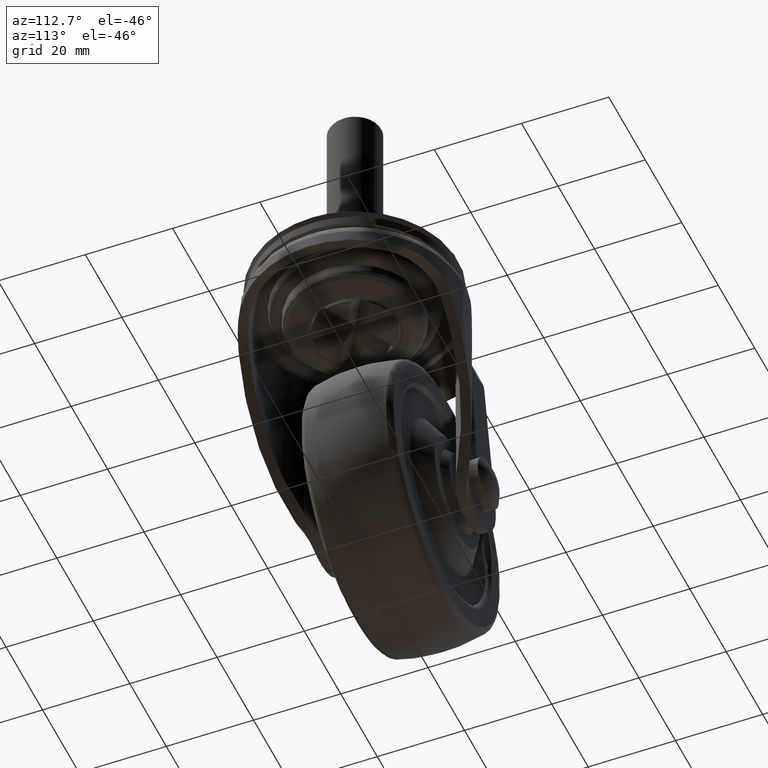
[diagram: clean part render]
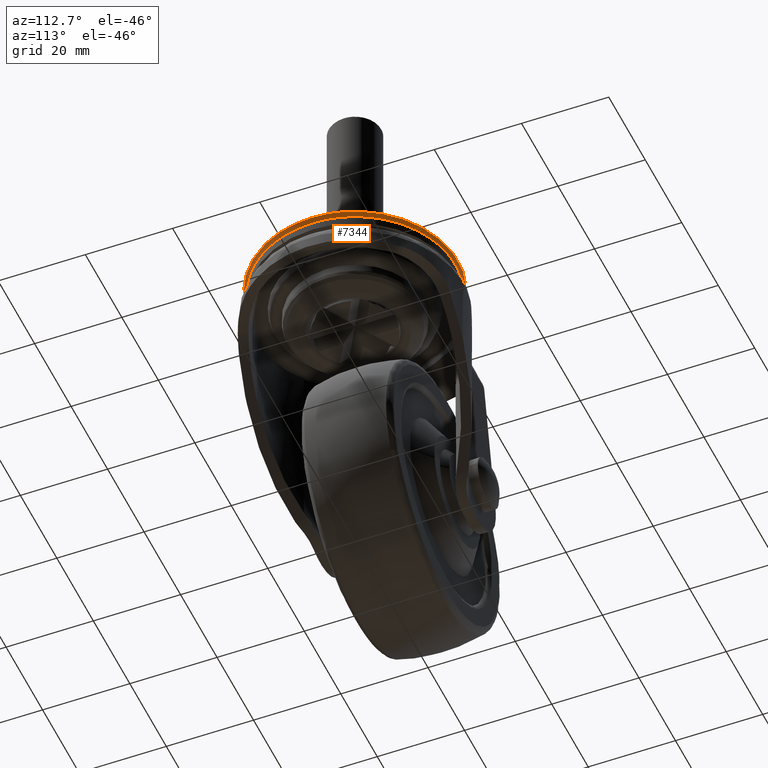
[diagram: same view with one face highlighted and labeled with its STEP entity id]
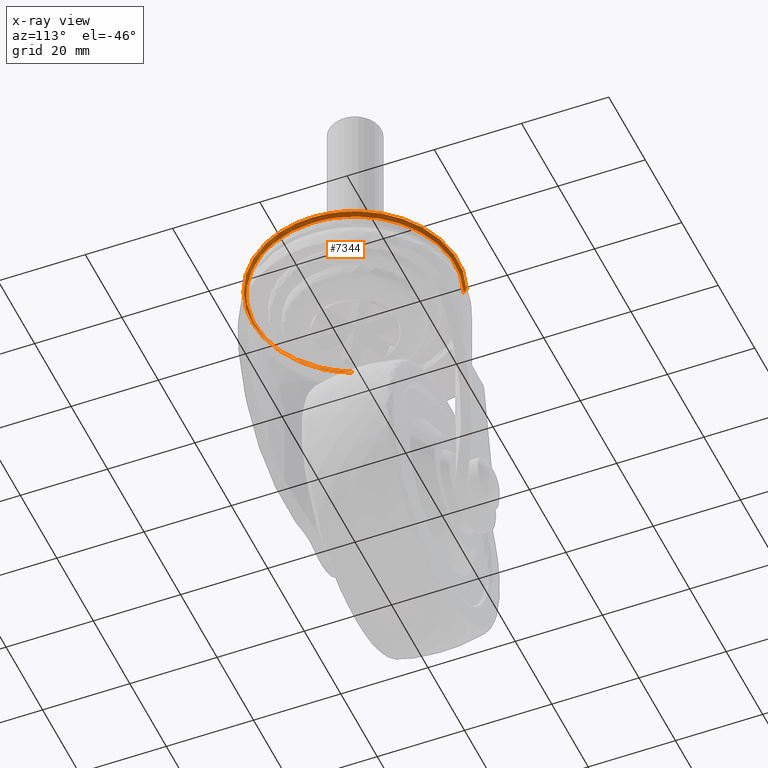
[diagram: x-ray of the same camera — body ghosted, the highlighted face saturated]
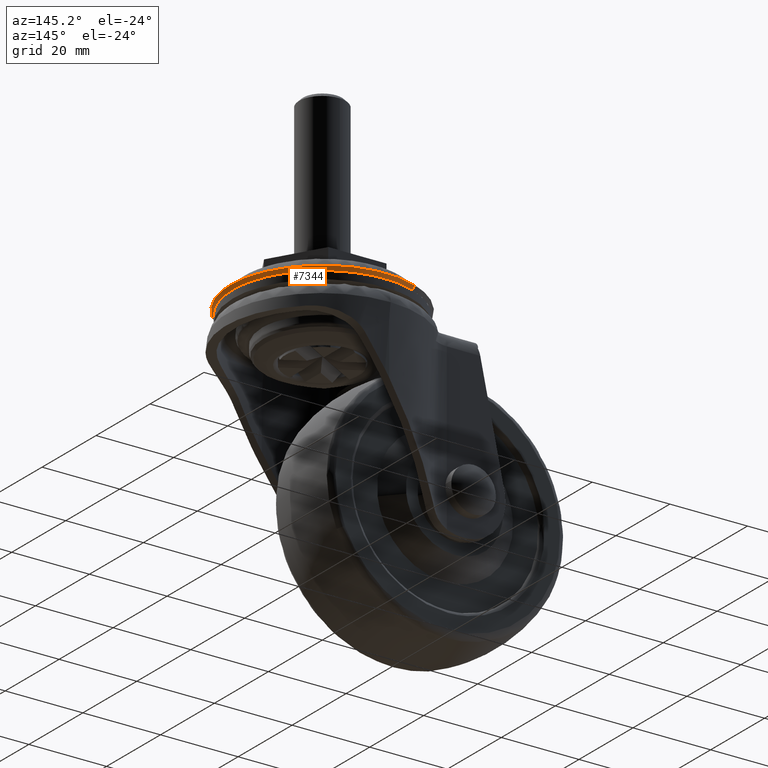
[diagram: same view with one face highlighted and labeled with its STEP entity id]
A machine part, auxiliary view. The second image highlights one B-rep face of the part: STEP entity #7344.
The next image is the same camera in x-ray: the body ghosted, the highlighted face saturated — about 2% of this face is hidden behind the body in this view.
A second angle (auxiliary view) of the same face is appended — the face is thin or edge-on in the first view.
In plain terms, the highlighted face is a freeform B-spline surface patch.
Its self-contained STEP definition (entity closure, byte-faithful):
#5056=CARTESIAN_POINT('',(-9.274998202307609,-21.020500832390528,-6.985144433152280));
#5057=VERTEX_POINT('',#5056);
#5058=CARTESIAN_POINT('',(-20.910406052344410,-9.520607419314523,-6.985144432890671));
#5059=VERTEX_POINT('',#5058);
#5060=CARTESIAN_POINT('',(-9.274998202307609,-21.020500832390535,-6.985144433152280));
#5061=CARTESIAN_POINT('',(-17.283289793390963,-17.486955618500868,-6.985144433030072));
#5062=CARTESIAN_POINT('',(-20.910406052344410,-9.520607419314525,-6.985144432890671));
#5070=(BOUNDED_CURVE()B_SPLINE_CURVE(2,(#5060,#5061,#5062),.UNSPECIFIED.,.F.,.U.)B_SPLINE_CURVE_WITH_KNOTS((3,3),(0.818547986872416,0.929624510040296),.UNSPECIFIED.)CURVE()GEOMETRIC_REPRESENTATION_ITEM()RATIONAL_B_SPLINE_CURVE((0.883422217277372,0.824651497946682,0.881519651450779))REPRESENTATION_ITEM(''));
#5071=EDGE_CURVE('',#5057,#5059,#5070,.T.);
#5088=CARTESIAN_POINT('',(-8.309109782968154,21.420684898488631,-6.985144432913128));
#5089=VERTEX_POINT('',#5088);
#5103=CARTESIAN_POINT('',(22.975792628274700,0.0,-6.985144433126120));
#5104=VERTEX_POINT('',#5103);
#5105=CARTESIAN_POINT('',(-8.309109782968154,21.420684898488631,-6.985144432913127));
#5106=CARTESIAN_POINT('',(-4.300079509373866,22.975792628274704,-6.985144433126121));
#5107=CARTESIAN_POINT('',(0.0,22.975792628274700,-6.985144433126120));
#5108=CARTESIAN_POINT('',(22.975792628274700,22.975792628274700,-6.985144433126120));
#5109=CARTESIAN_POINT('',(22.975792628274700,0.0,-6.985144433126120));
#5117=(BOUNDED_CURVE()B_SPLINE_CURVE(2,(#5105,#5106,#5107,#5108,#5109),.UNSPECIFIED.,.F.,.U.)B_SPLINE_CURVE_WITH_KNOTS((3,2,3),(0.188590655708231,0.250000000000000,0.500000000000000),.UNSPECIFIED.)CURVE()GEOMETRIC_REPRESENTATION_ITEM()RATIONAL_B_SPLINE_CURVE((0.891453974556436,0.928054477940642,1.0,0.707106781186548,1.0))REPRESENTATION_ITEM(''));
#5118=EDGE_CURVE('',#5089,#5104,#5117,.T.);
#5120=CARTESIAN_POINT('',(6.139984662540964,-22.140181463582159,-6.985144433175110));
#5121=VERTEX_POINT('',#5120);
#5122=CARTESIAN_POINT('',(22.975792628274700,0.0,-6.985144433126120));
#5123=CARTESIAN_POINT('',(22.975792628274700,-17.471222319743379,-6.985144433126121));
#5124=CARTESIAN_POINT('',(6.139984662540964,-22.140181463582167,-6.985144433175112));
#5132=(BOUNDED_CURVE()B_SPLINE_CURVE(2,(#5122,#5123,#5124),.UNSPECIFIED.,.F.,.U.)B_SPLINE_CURVE_WITH_KNOTS((3,3),(0.500000000000000,0.704451383600702),.UNSPECIFIED.)CURVE()GEOMETRIC_REPRESENTATION_ITEM()RATIONAL_B_SPLINE_CURVE((1.0,0.760470304665306,0.912718030327674))REPRESENTATION_ITEM(''));
#5133=EDGE_CURVE('',#5104,#5121,#5132,.T.);
#5211=CARTESIAN_POINT('',(6.139984662540964,-22.140181463582167,-6.985144433175112));
#5212=CARTESIAN_POINT('',(3.126852898269835,-22.975792628274700,-6.985144433126121));
#5213=CARTESIAN_POINT('',(0.0,-22.975792628274700,-6.985144433126120));
#5214=CARTESIAN_POINT('',(-4.843599734455698,-22.975792628274693,-6.985144433126121));
#5215=CARTESIAN_POINT('',(-9.274998202307609,-21.020500832390535,-6.985144433152280));
#5223=(BOUNDED_CURVE()B_SPLINE_CURVE(2,(#5211,#5212,#5213,#5214,#5215),.UNSPECIFIED.,.F.,.U.)B_SPLINE_CURVE_WITH_KNOTS((3,2,3),(0.704451383600702,0.750000000000000,0.818547986872416),.UNSPECIFIED.)CURVE()GEOMETRIC_REPRESENTATION_ITEM()RATIONAL_B_SPLINE_CURVE((0.912718030327674,0.946636476521242,1.0,0.919691037927023,0.883422217277372))REPRESENTATION_ITEM(''));
#5224=EDGE_CURVE('',#5121,#5057,#5223,.T.);
#7070=CARTESIAN_POINT('',(20.299135830046708,-12.037817418985460,-6.032882881434396));
#7071=VERTEX_POINT('',#7070);
#7072=CARTESIAN_POINT('',(-21.478578406334620,-9.779298735899737,-6.032880524102812));
#7073=VERTEX_POINT('',#7072);
#7074=CARTESIAN_POINT('',(20.299135830046701,-12.037817418985460,-6.032882881434396));
#7075=CARTESIAN_POINT('',(13.442466764803196,-23.600084041695272,-6.032882530836927));
#7076=CARTESIAN_POINT('',(-0.000000456888497,-23.600084183842021,-6.032881774548246));
#7077=CARTESIAN_POINT('',(-15.185908895745225,-23.600084344424708,-6.032880920171554));
#7078=CARTESIAN_POINT('',(-21.478578406334616,-9.779298735899737,-6.032880524102813));
#7086=(BOUNDED_CURVE()B_SPLINE_CURVE(2,(#7074,#7075,#7076,#7077,#7078),.UNSPECIFIED.,.F.,.U.)B_SPLINE_CURVE_WITH_KNOTS((3,2,3),(0.587060903016202,0.750000000000000,0.929624511609357),.UNSPECIFIED.)CURVE()GEOMETRIC_REPRESENTATION_ITEM()RATIONAL_B_SPLINE_CURVE((0.867044053001122,0.809104973655433,1.0,0.789556794467765,0.881519653057411))REPRESENTATION_ITEM(''));
#7087=EDGE_CURVE('',#7071,#7073,#7086,.T.);
#7138=CARTESIAN_POINT('',(23.332264198769341,3.545336518585166,-6.032882881988743));
#7139=VERTEX_POINT('',#7138);
#7153=CARTESIAN_POINT('',(-8.534882394358450,22.002721253315620,-6.032882844003243));
#7154=VERTEX_POINT('',#7153);
#7155=CARTESIAN_POINT('',(-8.534882394358450,22.002721253315620,-6.032882844003244));
#7156=CARTESIAN_POINT('',(-4.416919980243735,23.600083975951392,-6.032882882025340));
#7157=CARTESIAN_POINT('',(0.0,23.600083975951399,-6.032882882025340));
#7158=CARTESIAN_POINT('',(20.284946204873602,23.600083975951403,-6.032882882025339));
#7159=CARTESIAN_POINT('',(23.332264198769348,3.545336518585166,-6.032882881988743));
#7167=(BOUNDED_CURVE()B_SPLINE_CURVE(2,(#7155,#7156,#7157,#7158,#7159),.UNSPECIFIED.,.F.,.U.)B_SPLINE_CURVE_WITH_KNOTS((3,2,3),(0.188590655709763,0.250000000000000,0.474102415376520),.UNSPECIFIED.)CURVE()GEOMETRIC_REPRESENTATION_ITEM()RATIONAL_B_SPLINE_CURVE((0.891453974558263,0.928054477942436,1.0,0.737447688866007,0.945604234434538))REPRESENTATION_ITEM(''));
#7168=EDGE_CURVE('',#7154,#7139,#7167,.T.);
#7218=CARTESIAN_POINT('',(23.600083975951399,0.0,-6.032882882025340));
#7219=VERTEX_POINT('',#7218);
#7220=CARTESIAN_POINT('',(23.600083975951399,0.0,-6.032882882025340));
#7221=CARTESIAN_POINT('',(23.600083975951399,-6.471493189011065,-6.032882882025341));
#7222=CARTESIAN_POINT('',(20.299135830046701,-12.037817418985455,-6.032882881434396));
#7230=(BOUNDED_CURVE()B_SPLINE_CURVE(2,(#7220,#7221,#7222),.UNSPECIFIED.,.F.,.U.)B_SPLINE_CURVE_WITH_KNOTS((3,3),(0.500000000000000,0.587060903016203),.UNSPECIFIED.)CURVE()GEOMETRIC_REPRESENTATION_ITEM()RATIONAL_B_SPLINE_CURVE((1.0,0.898001807531114,0.867044053001122))REPRESENTATION_ITEM(''));
#7231=EDGE_CURVE('',#7219,#7071,#7230,.T.);
#7233=CARTESIAN_POINT('',(23.332264198769344,3.545336518585167,-6.032882881988743));
#7234=CARTESIAN_POINT('',(23.600083975951399,1.782784003267440,-6.032882882025341));
#7235=CARTESIAN_POINT('',(23.600083975951399,0.0,-6.032882882025340));
#7243=(BOUNDED_CURVE()B_SPLINE_CURVE(2,(#7233,#7234,#7235),.UNSPECIFIED.,.F.,.U.)B_SPLINE_CURVE_WITH_KNOTS((3,3),(0.474102415376520,0.500000000000000),.UNSPECIFIED.)CURVE()GEOMETRIC_REPRESENTATION_ITEM()RATIONAL_B_SPLINE_CURVE((0.945604234434538,0.969659092320541,1.0))REPRESENTATION_ITEM(''));
#7244=EDGE_CURVE('',#7139,#7219,#7243,.T.);
#7279=CARTESIAN_POINT('',(-8.543878110143455,22.025911991997532,-5.981746544304707));
#7280=CARTESIAN_POINT('',(12.256367646451185,30.094352675404462,-5.981746544304706));
#7281=CARTESIAN_POINT('',(21.501215559082738,9.789605800136567,-5.981746544304706));
#7282=CARTESIAN_POINT('',(31.290821359219319,-11.711609758946175,-5.981746544304706));
#7283=CARTESIAN_POINT('',(9.789605800136567,-21.501215559082738,-5.981746544304706));
#7284=CARTESIAN_POINT('',(-11.711609758946175,-31.290821359219319,-5.981746544304706));
#7285=CARTESIAN_POINT('',(-21.501215559082738,-9.789605800136572,-5.981746544304706));
#7286=CARTESIAN_POINT('',(-8.445246968875647,21.771643285301472,-6.551151327772585));
#7287=CARTESIAN_POINT('',(12.114879259891440,29.746941311170794,-6.551151327772585));
#7288=CARTESIAN_POINT('',(21.253003985614750,9.676593889130592,-6.551151327772583));
#7289=CARTESIAN_POINT('',(30.929597874745347,-11.576410096484151,-6.551151327772584));
#7290=CARTESIAN_POINT('',(9.676593889130592,-21.253003985614750,-6.551151327772583));
#7291=CARTESIAN_POINT('',(-11.576410096484150,-30.929597874745347,-6.551151327772584));
#7292=CARTESIAN_POINT('',(-21.253003985614750,-9.676593889130595,-6.551151327772583));
#7293=CARTESIAN_POINT('',(-8.295742715471791,21.386224920777622,-7.028334360969176));
#7294=CARTESIAN_POINT('',(11.900412354956265,29.220338090665205,-7.028334360969176));
#7295=CARTESIAN_POINT('',(20.876766972633519,9.505291386051825,-7.028334360969176));
#7296=CARTESIAN_POINT('',(30.382058358685352,-11.371475586581697,-7.028334360969175));
#7297=CARTESIAN_POINT('',(9.505291386051825,-20.876766972633519,-7.028334360969176));
#7298=CARTESIAN_POINT('',(-11.371475586581697,-30.382058358685352,-7.028334360969175));
#7299=CARTESIAN_POINT('',(-20.876766972633519,-9.505291386051827,-7.028334360969176));
#7307=(BOUNDED_SURFACE()B_SPLINE_SURFACE(2,2,((#7279,#7286,#7293),(#7280,#7287,#7294),(#7281,#7288,#7295),(#7282,#7289,#7296),(#7283,#7290,#7297),(#7284,#7291,#7298),(#7285,#7292,#7299)),.UNSPECIFIED.,.F.,.F.,.U.)B_SPLINE_SURFACE_WITH_KNOTS((3,2,2,3),(3,3),(0.0,37.577387969276657,76.720500437273174,115.863612905269700),(0.0,1.257047477350262),.UNSPECIFIED.)GEOMETRIC_REPRESENTATION_ITEM()RATIONAL_B_SPLINE_SURFACE(((0.936451992950205,0.928245028271454,0.936732514497548),(0.688633020348703,0.682597914526760,0.688839305776972),(0.958001468828597,0.949605646857949,0.958288445690641),(0.677409334995374,0.671472592346294,0.677612258280569),(0.958001468828597,0.949605646857949,0.958288445690641),(0.677409334995374,0.671472592346294,0.677612258280569),(0.958001468828597,0.949605646857949,0.958288445690641)))REPRESENTATION_ITEM('')SURFACE());
#7308=ORIENTED_EDGE('',*,*,#7168,.T.);
#7309=ORIENTED_EDGE('',*,*,#7244,.T.);
#7310=ORIENTED_EDGE('',*,*,#7231,.T.);
#7311=ORIENTED_EDGE('',*,*,#7087,.T.);
#7312=CARTESIAN_POINT('',(-21.478578406334616,-9.779298735899737,-6.032880524102812));
#7313=CARTESIAN_POINT('',(-21.247404356038114,-9.674044351127431,-6.547127343855395));
#7314=CARTESIAN_POINT('',(-20.910406052344403,-9.520607419314523,-6.985144432890672));
#7322=(BOUNDED_CURVE()B_SPLINE_CURVE(2,(#7312,#7313,#7314),.UNSPECIFIED.,.F.,.U.)B_SPLINE_CURVE_WITH_KNOTS((3,3),(-1.271499342239077,-0.718276134720308),.UNSPECIFIED.)CURVE()GEOMETRIC_REPRESENTATION_ITEM()RATIONAL_B_SPLINE_CURVE((0.957274124174831,0.950346025605515,0.957535032738607))REPRESENTATION_ITEM(''));
#7323=EDGE_CURVE('',#7073,#5059,#7322,.T.);
#7324=ORIENTED_EDGE('',*,*,#7323,.T.);
#7325=ORIENTED_EDGE('',*,*,#5071,.F.);
#7326=ORIENTED_EDGE('',*,*,#5224,.F.);
#7327=ORIENTED_EDGE('',*,*,#5133,.F.);
#7328=ORIENTED_EDGE('',*,*,#5118,.F.);
#7329=CARTESIAN_POINT('',(-8.534882394358450,22.002721253315624,-6.032882844003243));
#7330=CARTESIAN_POINT('',(-8.443021553108460,21.765906217051928,-6.547128346624486));
#7331=CARTESIAN_POINT('',(-8.309109782968154,21.420684898488634,-6.985144432913128));
#7339=(BOUNDED_CURVE()B_SPLINE_CURVE(2,(#7329,#7330,#7331),.UNSPECIFIED.,.F.,.U.)B_SPLINE_CURVE_WITH_KNOTS((3,3),(-1.271498085266554,-0.718276134691729),.UNSPECIFIED.)CURVE()GEOMETRIC_REPRESENTATION_ITEM()RATIONAL_B_SPLINE_CURVE((0.935740978557700,0.928968768758280,0.935996048967266))REPRESENTATION_ITEM(''));
#7340=EDGE_CURVE('',#7154,#5089,#7339,.T.);
#7341=ORIENTED_EDGE('',*,*,#7340,.F.);
#7342=EDGE_LOOP('',(#7308,#7309,#7310,#7311,#7324,#7325,#7326,#7327,#7328,#7341));
#7343=FACE_OUTER_BOUND('',#7342,.T.);
#7344=ADVANCED_FACE('',(#7343),#7307,.T.);